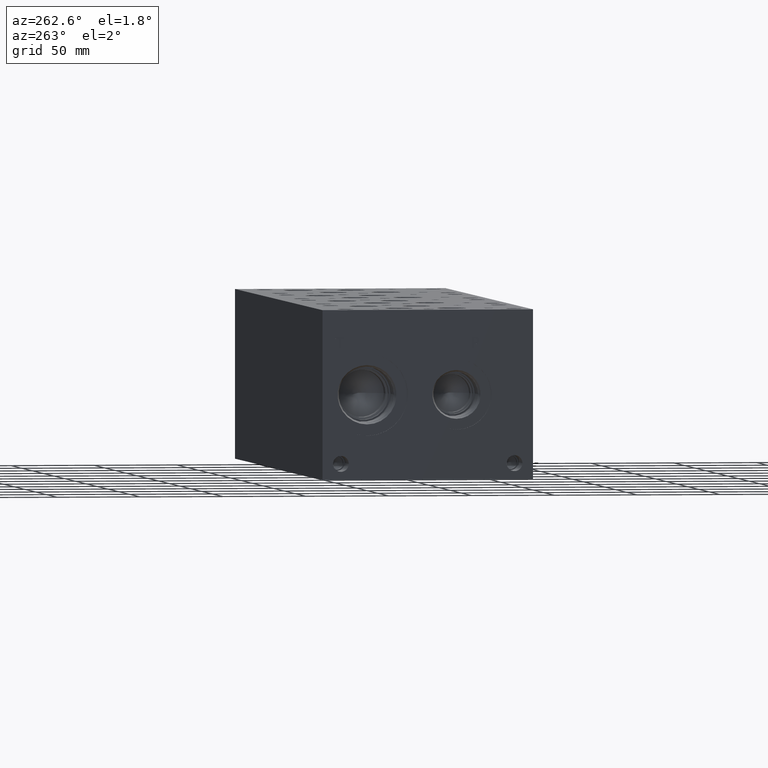
[diagram: clean part render]
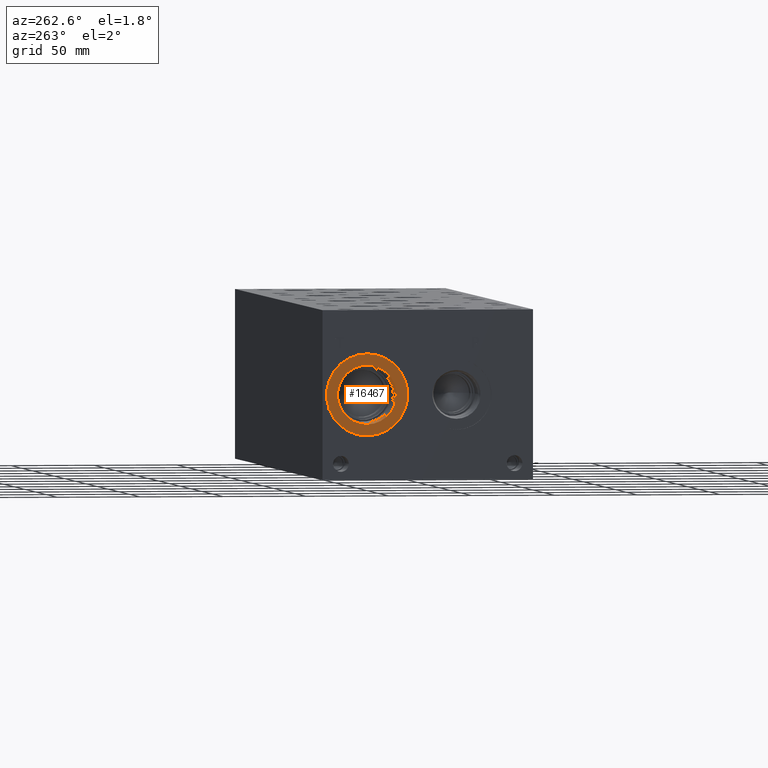
[diagram: same view with one face highlighted and labeled with its STEP entity id]
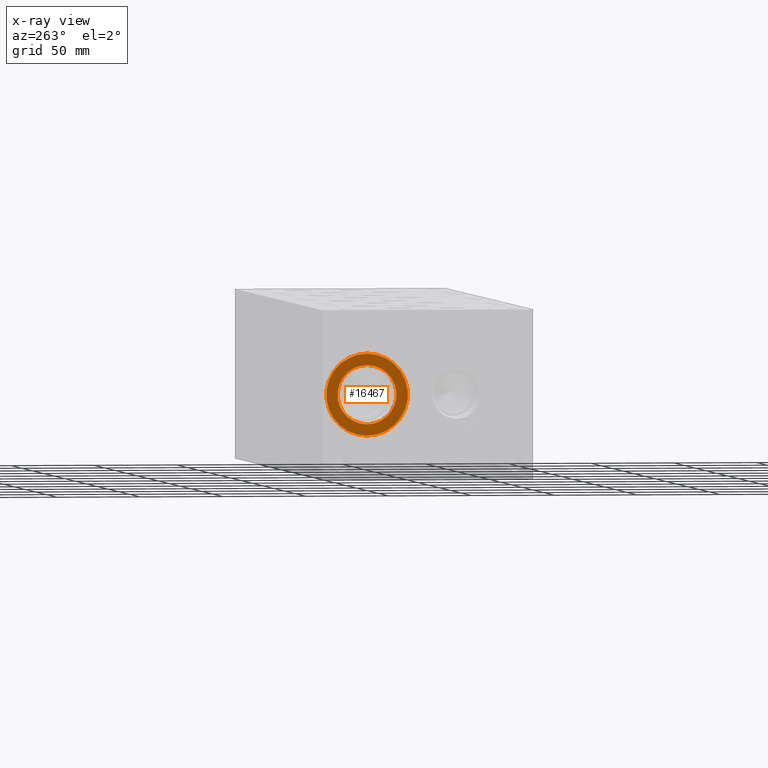
[diagram: x-ray of the same camera — body ghosted, the highlighted face saturated]
A machine part, auxiliary view. The second image highlights one B-rep face of the part: STEP entity #16467.
The next image is the same camera in x-ray: the body ghosted, the highlighted face saturated — about 0% of this face is hidden behind the body in this view.
In plain terms, the highlighted planar face has unit normal (1, 0, 0).
Its self-contained STEP definition (entity closure, byte-faithful):
#376=CIRCLE('',#17299,24.5618);
#377=CIRCLE('',#17300,24.5618);
#378=CIRCLE('',#17302,17.7546);
#379=CIRCLE('',#17303,17.7546);
#944=FACE_BOUND('',#3037,.T.);
#2079=FACE_OUTER_BOUND('',#3036,.T.);
#3036=EDGE_LOOP('',(#13407,#13408));
#3037=EDGE_LOOP('',(#13409,#13410));
#7392=VERTEX_POINT('',#27339);
#7393=VERTEX_POINT('',#27341);
#7394=VERTEX_POINT('',#27345);
#7395=VERTEX_POINT('',#27346);
#9540=EDGE_CURVE('',#7392,#7393,#376,.T.);
#9541=EDGE_CURVE('',#7393,#7392,#377,.T.);
#9542=EDGE_CURVE('',#7394,#7395,#378,.T.);
#9543=EDGE_CURVE('',#7395,#7394,#379,.T.);
#13407=ORIENTED_EDGE('',*,*,#9541,.F.);
#13408=ORIENTED_EDGE('',*,*,#9540,.F.);
#13409=ORIENTED_EDGE('',*,*,#9542,.T.);
#13410=ORIENTED_EDGE('',*,*,#9543,.T.);
#15307=PLANE('',#17301);
#16467=ADVANCED_FACE('',(#2079,#944),#15307,.F.);
#17299=AXIS2_PLACEMENT_3D('',#27342,#20336,#20337);
#17300=AXIS2_PLACEMENT_3D('',#27343,#20338,#20339);
#17301=AXIS2_PLACEMENT_3D('',#27344,#20340,#20341);
#17302=AXIS2_PLACEMENT_3D('',#27347,#20342,#20343);
#17303=AXIS2_PLACEMENT_3D('',#27348,#20344,#20345);
#20336=DIRECTION('center_axis',(1.,0.,0.));
#20337=DIRECTION('ref_axis',(0.,0.,-1.));
#20338=DIRECTION('center_axis',(1.,0.,0.));
#20339=DIRECTION('ref_axis',(0.,0.,-1.));
#20340=DIRECTION('center_axis',(1.,0.,0.));
#20341=DIRECTION('ref_axis',(0.,0.,-1.));
#20342=DIRECTION('center_axis',(1.,0.,0.));
#20343=DIRECTION('ref_axis',(0.,0.,-1.));
#20344=DIRECTION('center_axis',(1.,0.,0.));
#20345=DIRECTION('ref_axis',(0.,0.,-1.));
#27339=CARTESIAN_POINT('',(0.7874,100.0252,26.2382));
#27341=CARTESIAN_POINT('',(0.7874,100.0252,75.3618));
#27342=CARTESIAN_POINT('Origin',(0.7874,100.0252,50.8));
#27343=CARTESIAN_POINT('Origin',(0.7874,100.0252,50.8));
#27344=CARTESIAN_POINT('Origin',(0.7874,100.0252,68.5546));
#27345=CARTESIAN_POINT('',(0.7874,100.0252,68.5546));
#27346=CARTESIAN_POINT('',(0.787400000000001,100.0252,33.0454));
#27347=CARTESIAN_POINT('Origin',(0.7874,100.0252,50.8));
#27348=CARTESIAN_POINT('Origin',(0.7874,100.0252,50.8));